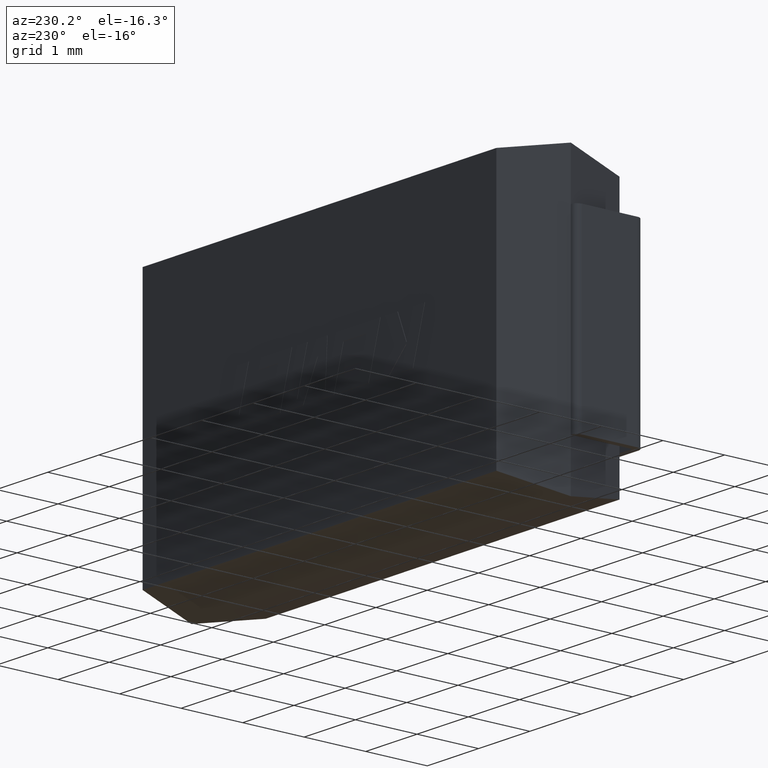
[diagram: clean part render]
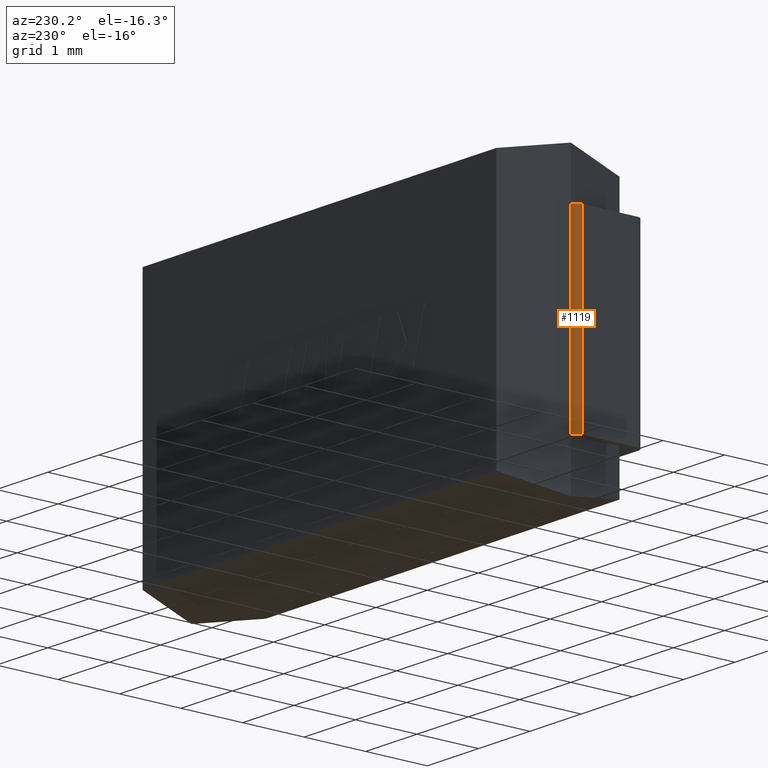
[diagram: same view with one face highlighted and labeled with its STEP entity id]
A machine part, auxiliary view. The second image highlights one B-rep face of the part: STEP entity #1119.
In plain terms, the highlighted cylindrical surface (edge-blend (fillet) strip) has radius 0.1 mm, axis along (0, 0, 1).
Its self-contained STEP definition (entity closure, byte-faithful):
#20 = LINE ( 'NONE', #1469, #1282 ) ;
#46 = DIRECTION ( 'NONE',  ( 0.000000000000000000, 0.000000000000000000, 1.000000000000000000 ) ) ;
#48 = CYLINDRICAL_SURFACE ( 'NONE', #2389, 0.1000000000000000056 ) ;
#50 = VERTEX_POINT ( 'NONE', #578 ) ;
#298 = DIRECTION ( 'NONE',  ( -0.000000000000000000, -0.000000000000000000, -1.000000000000000000 ) ) ;
#443 = VERTEX_POINT ( 'NONE', #1904 ) ;
#455 = CIRCLE ( 'NONE', #2959, 0.1000000000000000056 ) ;
#464 = ORIENTED_EDGE ( 'NONE', *, *, #1575, .F. ) ;
#539 = ORIENTED_EDGE ( 'NONE', *, *, #767, .F. ) ;
#578 = CARTESIAN_POINT ( 'NONE',  ( -0.1009999999999999926, 0.8999999999999991340, -0.7999999999999999334 ) ) ;
#767 = EDGE_CURVE ( 'NONE', #443, #2347, #455, .T. ) ;
#1057 = CARTESIAN_POINT ( 'NONE',  ( -0.001000000000000000021, 0.9999999999999991118, -3.799999999999999822 ) ) ;
#1092 = AXIS2_PLACEMENT_3D ( 'NONE', #1325, #2706, #1129 ) ;
#1119 = ADVANCED_FACE ( 'NONE', ( #1214 ), #48, .T. ) ;
#1129 = DIRECTION ( 'NONE',  ( 1.000000000000000000, 0.000000000000000000, 0.000000000000000000 ) ) ;
#1214 = FACE_OUTER_BOUND ( 'NONE', #2880, .T. ) ;
#1282 = VECTOR ( 'NONE', #298, 1000.000000000000000 ) ;
#1325 = CARTESIAN_POINT ( 'NONE',  ( -0.0009999999999999811557, 0.8999999999999991340, -0.7999999999999999334 ) ) ;
#1326 = EDGE_CURVE ( 'NONE', #2347, #1594, #1908, .T. ) ;
#1340 = DIRECTION ( 'NONE',  ( 0.000000000000000000, 0.000000000000000000, 1.000000000000000000 ) ) ;
#1469 = CARTESIAN_POINT ( 'NONE',  ( -0.1009999999999999926, 0.8999999999999991340, -3.799999999999999822 ) ) ;
#1575 = EDGE_CURVE ( 'NONE', #50, #443, #20, .T. ) ;
#1594 = VERTEX_POINT ( 'NONE', #1942 ) ;
#1709 = VECTOR ( 'NONE', #46, 1000.000000000000000 ) ;
#1904 = CARTESIAN_POINT ( 'NONE',  ( -0.1009999999999999926, 0.8999999999999991340, -3.799999999999999822 ) ) ;
#1908 = LINE ( 'NONE', #2134, #1709 ) ;
#1942 = CARTESIAN_POINT ( 'NONE',  ( -0.001000000000000000021, 0.9999999999999991118, -0.7999999999999999334 ) ) ;
#2134 = CARTESIAN_POINT ( 'NONE',  ( -0.001000000000000000021, 0.9999999999999991118, -3.799999999999999822 ) ) ;
#2137 = EDGE_CURVE ( 'NONE', #1594, #50, #2597, .T. ) ;
#2273 = ORIENTED_EDGE ( 'NONE', *, *, #2137, .F. ) ;
#2347 = VERTEX_POINT ( 'NONE', #1057 ) ;
#2389 = AXIS2_PLACEMENT_3D ( 'NONE', #2920, #1340, #2685 ) ;
#2399 = DIRECTION ( 'NONE',  ( -0.000000000000000000, 0.000000000000000000, -1.000000000000000000 ) ) ;
#2597 = CIRCLE ( 'NONE', #1092, 0.1000000000000000056 ) ;
#2603 = CARTESIAN_POINT ( 'NONE',  ( -0.0009999999999999811557, 0.8999999999999991340, -3.799999999999999822 ) ) ;
#2685 = DIRECTION ( 'NONE',  ( 1.000000000000000000, 0.000000000000000000, 0.000000000000000000 ) ) ;
#2706 = DIRECTION ( 'NONE',  ( 0.000000000000000000, -0.000000000000000000, 1.000000000000000000 ) ) ;
#2844 = DIRECTION ( 'NONE',  ( 1.000000000000000000, 0.000000000000000000, 0.000000000000000000 ) ) ;
#2880 = EDGE_LOOP ( 'NONE', ( #539, #464, #2273, #2979 ) ) ;
#2920 = CARTESIAN_POINT ( 'NONE',  ( -0.0009999999999999811557, 0.8999999999999991340, -3.799999999999999822 ) ) ;
#2959 = AXIS2_PLACEMENT_3D ( 'NONE', #2603, #2399, #2844 ) ;
#2979 = ORIENTED_EDGE ( 'NONE', *, *, #1326, .F. ) ;